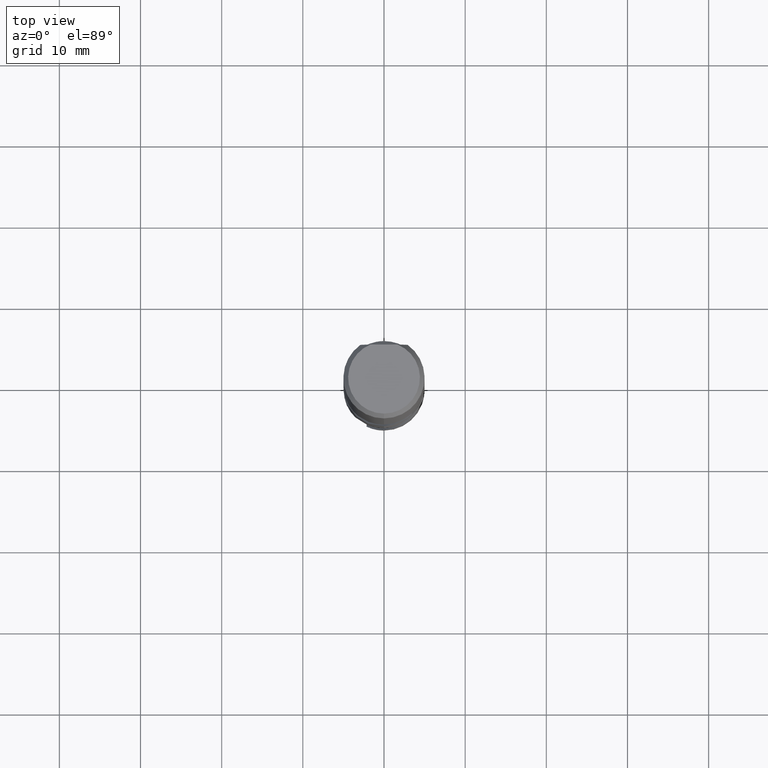
[diagram: clean part render]
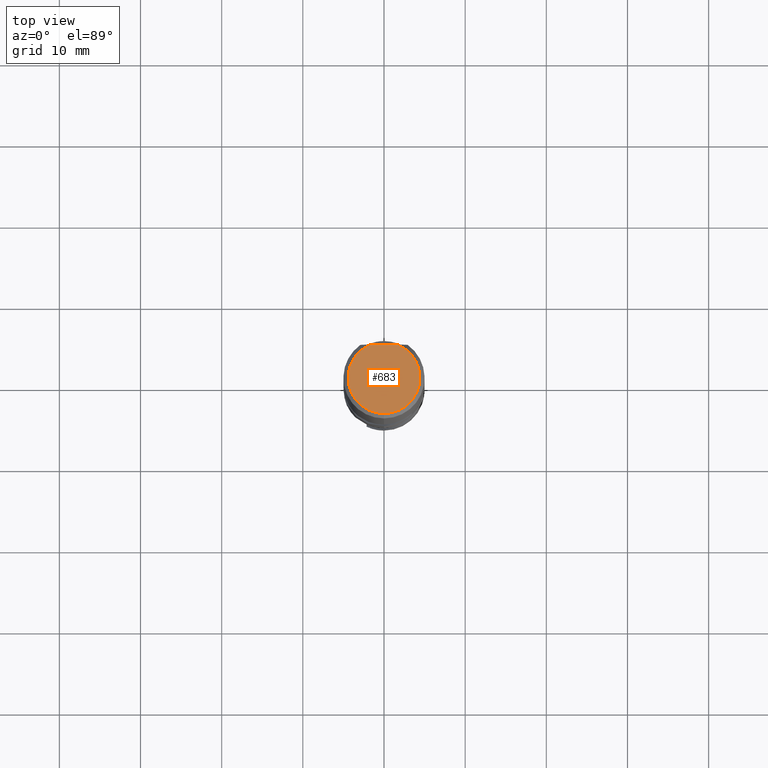
[diagram: same view with one face highlighted and labeled with its STEP entity id]
A machine part, top view. The second image highlights one B-rep face of the part: STEP entity #683.
In plain terms, the highlighted planar face has unit normal (-0, 0, 1).
Its self-contained STEP definition (entity closure, byte-faithful):
#349=EDGE_CURVE('',#543,#563,#885,.T.);
#459=EDGE_CURVE('',#543,#469,#1010,.T.);
#469=VERTEX_POINT('',#1020);
#543=VERTEX_POINT('',#1097);
#563=VERTEX_POINT('',#1117);
#683=ADVANCED_FACE('',(#1252),#1253,.T.);
#783=EDGE_CURVE('',#469,#563,#1360,.T.);
#885=LINE('',#2118,#2119);
#1010=CIRCLE('',#4269,4.42264973081037);
#1020=CARTESIAN_POINT('',(5.41600496108121E-016,-4.42264973081037,0.0));
#1097=CARTESIAN_POINT('',(1.66217385787441,4.09841538983495,0.0));
#1117=CARTESIAN_POINT('',(-1.66217385787441,4.09841538983495,0.0));
#1252=FACE_OUTER_BOUND('',#6857,.T.);
#1253=PLANE('',#6858);
#1360=CIRCLE('',#7628,4.42264973081037);
#2118=CARTESIAN_POINT('',(-2.5,4.09841538983495,1.77635683940025E-015));
#2119=VECTOR('',#7731,1.0);
#4269=AXIS2_PLACEMENT_3D('',#7873,#7874,#7875);
#6857=EDGE_LOOP('',(#8114,#8115,#8116));
#6858=AXIS2_PLACEMENT_3D('',#8117,#8118,#8119);
#7628=AXIS2_PLACEMENT_3D('',#8202,#8203,#8204);
#7731=DIRECTION('',(-1.0,0.0,0.0));
#7873=CARTESIAN_POINT('',(0.0,0.0,0.0));
#7874=DIRECTION('',(0.0,0.0,-1.0));
#7875=DIRECTION('',(0.0,1.0,0.0));
#8114=ORIENTED_EDGE('',*,*,#349,.T.);
#8115=ORIENTED_EDGE('',*,*,#783,.F.);
#8116=ORIENTED_EDGE('',*,*,#459,.F.);
#8117=CARTESIAN_POINT('',(0.0,2.21132486540519,0.0));
#8118=DIRECTION('',(-0.0,0.0,1.0));
#8119=DIRECTION('',(0.0,-1.0,0.0));
#8202=CARTESIAN_POINT('',(0.0,0.0,0.0));
#8203=DIRECTION('',(0.0,0.0,-1.0));
#8204=DIRECTION('',(0.0,1.0,0.0));